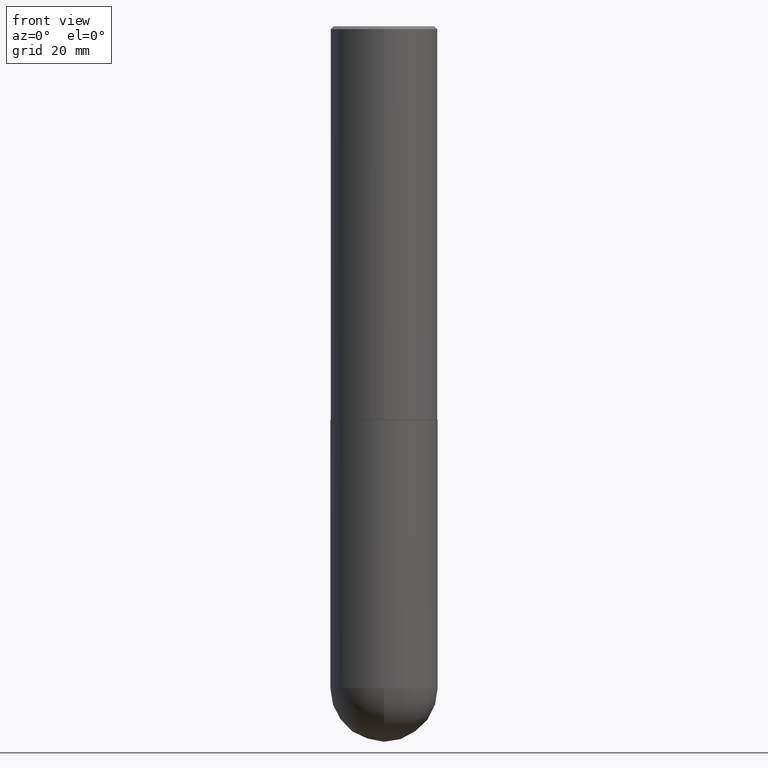
[diagram: clean part render]
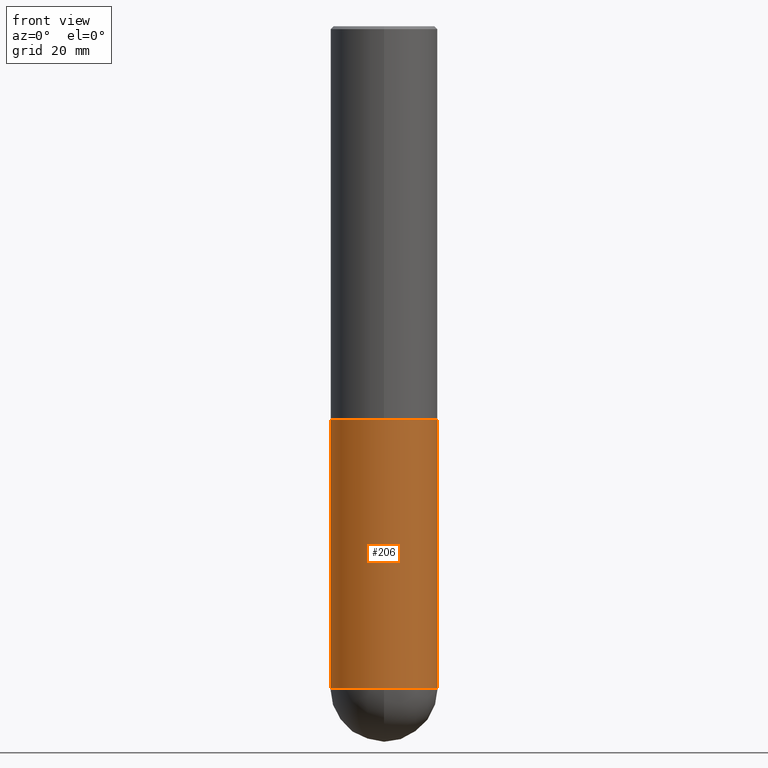
[diagram: same view with one face highlighted and labeled with its STEP entity id]
A machine part, front view. The second image highlights one B-rep face of the part: STEP entity #206.
In plain terms, the highlighted cylindrical surface (partial cylindrical patch) has radius 9.525 mm, axis along (-0, 0, 1).
Its self-contained STEP definition (entity closure, byte-faithful):
#4 = VERTEX_POINT ( 'NONE', #304 ) ;
#10 = DIRECTION ( 'NONE',  ( -2.445468806185136877E-29, 3.491481338843145188E-15, 1.000000000000000000 ) ) ;
#19 = VERTEX_POINT ( 'NONE', #156 ) ;
#40 = FACE_OUTER_BOUND ( 'NONE', #214, .T. ) ;
#51 = DIRECTION ( 'NONE',  ( -2.445468806185136597E-29, 3.491481338843145583E-15, 1.000000000000000000 ) ) ;
#57 = CIRCLE ( 'NONE', #165, 0.3750000000000001110 ) ;
#58 = DIRECTION ( 'NONE',  ( 1.000000000000000000, -6.982962677686270655E-15, 0.000000000000000000 ) ) ;
#64 = EDGE_CURVE ( 'NONE', #19, #173, #393, .T. ) ;
#80 = LINE ( 'NONE', #177, #101 ) ;
#101 = VECTOR ( 'NONE', #141, 39.37007874015748143 ) ;
#108 = VERTEX_POINT ( 'NONE', #401 ) ;
#131 = EDGE_CURVE ( 'NONE', #232, #19, #57, .T. ) ;
#141 = DIRECTION ( 'NONE',  ( -2.445468806185136877E-29, 3.491481338843145188E-15, 1.000000000000000000 ) ) ;
#150 = ORIENTED_EDGE ( 'NONE', *, *, #131, .T. ) ;
#153 = AXIS2_PLACEMENT_3D ( 'NONE', #364, #51, #290 ) ;
#156 = CARTESIAN_POINT ( 'NONE',  ( -2.664535259100265651E-15, -0.3750000000000165978, -4.624999999999999112 ) ) ;
#162 = EDGE_CURVE ( 'NONE', #232, #108, #80, .T. ) ;
#164 = CARTESIAN_POINT ( 'NONE',  ( 0.3750000000000001110, -2.618611004132350411E-15, 1.828566290923476483E-29 ) ) ;
#165 = AXIS2_PLACEMENT_3D ( 'NONE', #268, #405, #231 ) ;
#173 = VERTEX_POINT ( 'NONE', #265 ) ;
#177 = CARTESIAN_POINT ( 'NONE',  ( -0.3750000000000001110, 2.664535259100376486E-15, -1.844600658845590159E-29 ) ) ;
#191 = EDGE_CURVE ( 'NONE', #108, #4, #396, .T. ) ;
#205 = CARTESIAN_POINT ( 'NONE',  ( 1.131029322860625676E-28, -1.614810119214955014E-14, -4.625000000000000000 ) ) ;
#206 = ADVANCED_FACE ( 'NONE', ( #40 ), #212, .T. ) ;
#212 = CYLINDRICAL_SURFACE ( 'NONE', #153, 0.3750000000000001110 ) ;
#214 = EDGE_LOOP ( 'NONE', ( #244, #150, #380, #233, #242 ) ) ;
#218 = AXIS2_PLACEMENT_3D ( 'NONE', #205, #336, #58 ) ;
#231 = DIRECTION ( 'NONE',  ( 1.000000000000000000, -6.982962677686270655E-15, 0.000000000000000000 ) ) ;
#232 = VERTEX_POINT ( 'NONE', #383 ) ;
#233 = ORIENTED_EDGE ( 'NONE', *, *, #311, .T. ) ;
#242 = ORIENTED_EDGE ( 'NONE', *, *, #191, .F. ) ;
#244 = ORIENTED_EDGE ( 'NONE', *, *, #162, .F. ) ;
#251 = AXIS2_PLACEMENT_3D ( 'NONE', #403, #377, #273 ) ;
#265 = CARTESIAN_POINT ( 'NONE',  ( 0.3750000000000001110, -1.549344844111645238E-14, -4.625000000000000000 ) ) ;
#268 = CARTESIAN_POINT ( 'NONE',  ( 1.131029322860625676E-28, -1.614810119214955014E-14, -4.625000000000000000 ) ) ;
#270 = LINE ( 'NONE', #164, #343 ) ;
#273 = DIRECTION ( 'NONE',  ( 1.000000000000000000, -6.982962677686266711E-15, 0.000000000000000000 ) ) ;
#290 = DIRECTION ( 'NONE',  ( 1.000000000000000000, -6.982962677686265922E-15, 4.876176775795935793E-29 ) ) ;
#304 = CARTESIAN_POINT ( 'NONE',  ( 0.3750000000000000555, -1.222018468595100145E-14, -2.750000000000000000 ) ) ;
#311 = EDGE_CURVE ( 'NONE', #173, #4, #270, .T. ) ;
#336 = DIRECTION ( 'NONE',  ( -2.445468806185136597E-29, 3.491481338843145583E-15, 1.000000000000000000 ) ) ;
#343 = VECTOR ( 'NONE', #10, 39.37007874015748143 ) ;
#364 = CARTESIAN_POINT ( 'NONE',  ( 0.000000000000000000, 0.000000000000000000, 0.000000000000000000 ) ) ;
#377 = DIRECTION ( 'NONE',  ( -2.445468806185136597E-29, 3.491481338843145583E-15, 1.000000000000000000 ) ) ;
#380 = ORIENTED_EDGE ( 'NONE', *, *, #64, .T. ) ;
#383 = CARTESIAN_POINT ( 'NONE',  ( -0.3750000000000001110, -1.021030217788372352E-14, -4.625000000000000000 ) ) ;
#393 = CIRCLE ( 'NONE', #218, 0.3750000000000001110 ) ;
#396 = CIRCLE ( 'NONE', #251, 0.3750000000000000555 ) ;
#401 = CARTESIAN_POINT ( 'NONE',  ( -0.3750000000000000555, -1.021030217788372194E-14, -2.750000000000000000 ) ) ;
#403 = CARTESIAN_POINT ( 'NONE',  ( 6.725039217009124520E-29, -9.601573681818649859E-15, -2.750000000000000000 ) ) ;
#405 = DIRECTION ( 'NONE',  ( -2.445468806185136597E-29, 3.491481338843145583E-15, 1.000000000000000000 ) ) ;